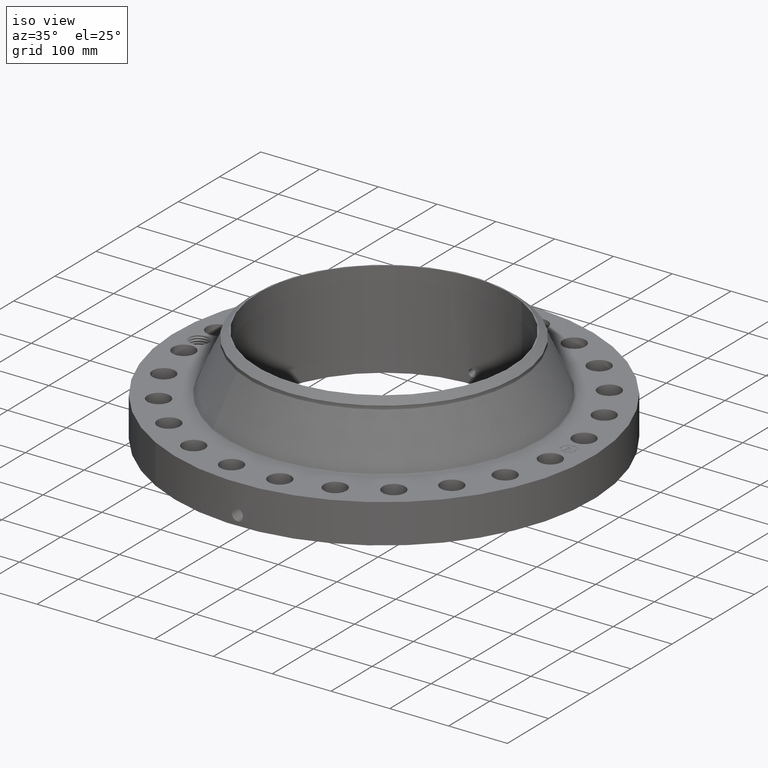
[diagram: clean part render]
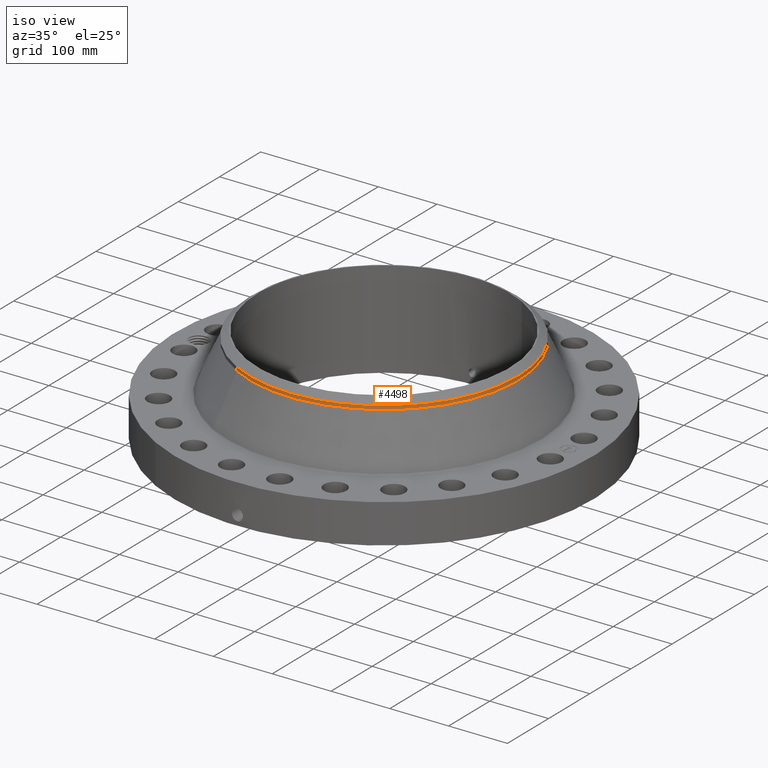
[diagram: same view with one face highlighted and labeled with its STEP entity id]
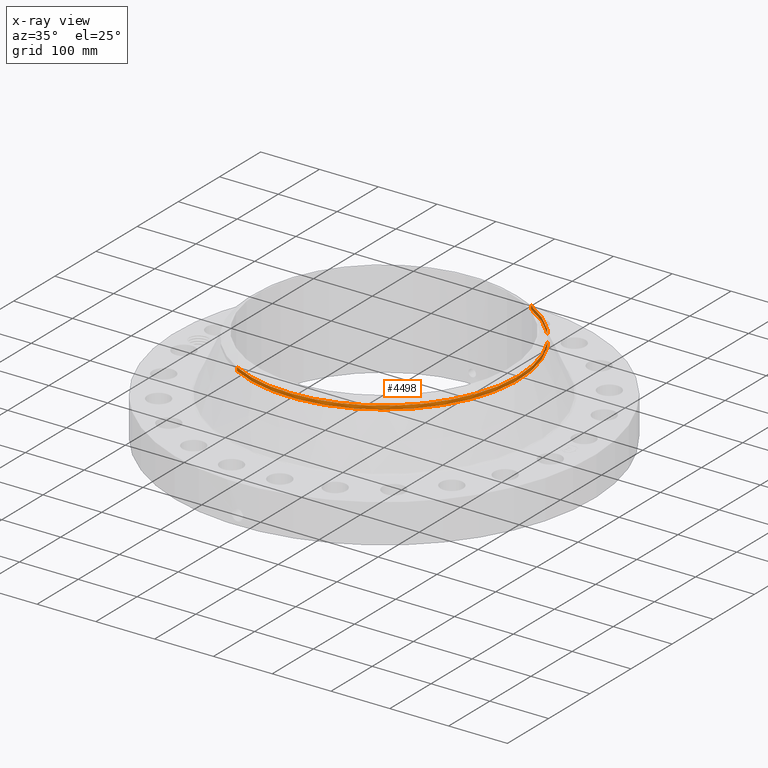
[diagram: x-ray of the same camera — body ghosted, the highlighted face saturated]
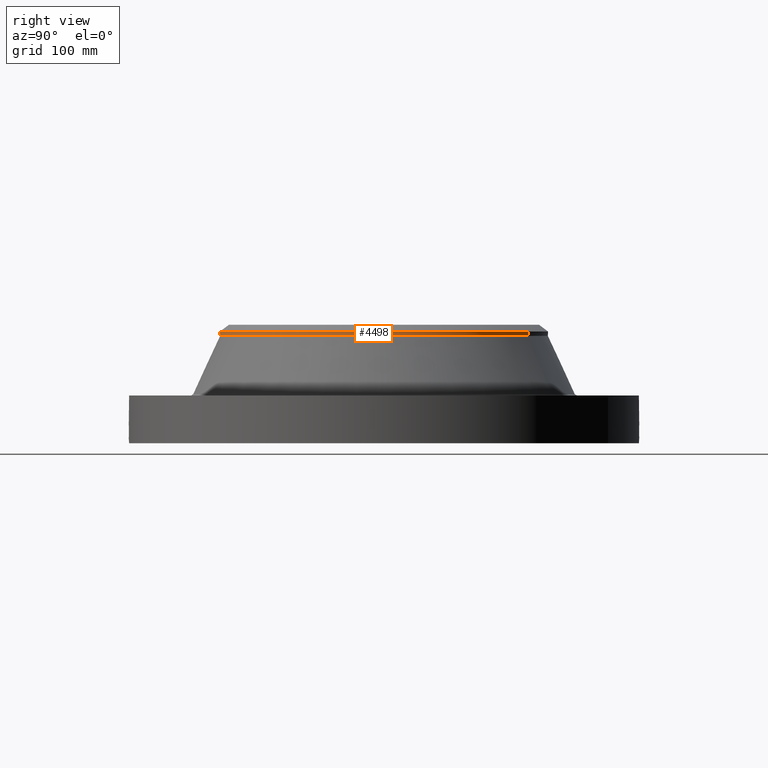
[diagram: same view with one face highlighted and labeled with its STEP entity id]
A machine part, iso view. The second image highlights one B-rep face of the part: STEP entity #4498.
The next image is the same camera in x-ray: the body ghosted, the highlighted face saturated — about 0% of this face is hidden behind the body in this view.
A second angle (right view) of the same face is appended — the face is thin or edge-on in the first view.
In plain terms, the highlighted cylindrical surface (partial cylindrical patch) has radius 228.6 mm, axis along (0, 0, -1).
Its self-contained STEP definition (entity closure, byte-faithful):
#3661=AXIS2_PLACEMENT_3D('Circle Axis2P3D',#3659,#3660,$) ;
#4128=AXIS2_PLACEMENT_3D('Circle Axis2P3D',#4126,#4127,$) ;
#4141=AXIS2_PLACEMENT_3D('Circle Axis2P3D',#4139,#4140,$) ;
#4479=AXIS2_PLACEMENT_3D('Cylinder Axis2P3D',#4476,#4477,#4478) ;
#3656=CARTESIAN_POINT('Vertex',(4.31482984746,7.89824305704,6.14296120821)) ;
#3659=CARTESIAN_POINT('Axis2P3D Location',(0.,0.,6.14296120821)) ;
#3663=CARTESIAN_POINT('Vertex',(-4.31482984746,-7.89824305704,6.14296120821)) ;
#4109=CARTESIAN_POINT('Vertex',(4.31482984746,-7.89824305704,6.37918168065)) ;
#4123=CARTESIAN_POINT('Vertex',(-4.31482984746,-7.89824305704,6.37918168065)) ;
#4126=CARTESIAN_POINT('Axis2P3D Location',(0.,0.,6.37918168065)) ;
#4139=CARTESIAN_POINT('Axis2P3D Location',(0.,0.,6.37918168065)) ;
#4143=CARTESIAN_POINT('Vertex',(4.31482984746,7.89824305704,6.37918168065)) ;
#4476=CARTESIAN_POINT('Axis2P3D Location',(0.,0.,3.50000000001)) ;
#4481=CARTESIAN_POINT('Line Origine',(-4.31482984746,-7.89824305704,6.26107144443)) ;
#4486=CARTESIAN_POINT('Line Origine',(4.31482984746,7.89824305704,6.26107144443)) ;
#3660=DIRECTION('Axis2P3D Direction',(0.,0.,-0.0393700787402)) ;
#4127=DIRECTION('Axis2P3D Direction',(0.,0.,-0.0393700787402)) ;
#4140=DIRECTION('Axis2P3D Direction',(0.,0.,-0.0393700787402)) ;
#4477=DIRECTION('Axis2P3D Direction',(0.,0.,-0.0393700787402)) ;
#4478=DIRECTION('Axis2P3D XDirection',(-0.0188750212049,-0.0345504945626,0.)) ;
#4482=DIRECTION('Vector Direction',(0.,0.,-0.0393700787402)) ;
#4487=DIRECTION('Vector Direction',(0.,0.,-0.0393700787402)) ;
#4483=VECTOR('Line Direction',#4482,0.0393700787402) ;
#4488=VECTOR('Line Direction',#4487,0.0393700787402) ;
#4492=ORIENTED_EDGE('',*,*,#4485,.F.) ;
#4493=ORIENTED_EDGE('',*,*,#3665,.F.) ;
#4494=ORIENTED_EDGE('',*,*,#4490,.T.) ;
#4495=ORIENTED_EDGE('',*,*,#4145,.F.) ;
#4496=ORIENTED_EDGE('',*,*,#4130,.T.) ;
#4498=ADVANCED_FACE('PartBody',(#4497),#4480,.T.) ;
#3662=CIRCLE('generated circle',#3661,9.00000000004) ;
#4129=CIRCLE('generated circle',#4128,9.00000000004) ;
#4142=CIRCLE('generated circle',#4141,9.00000000004) ;
#4480=CYLINDRICAL_SURFACE('generated cylinder',#4479,9.00000000004) ;
#3665=EDGE_CURVE('',#3657,#3664,#3662,.T.) ;
#4130=EDGE_CURVE('',#4110,#4124,#4129,.T.) ;
#4145=EDGE_CURVE('',#4110,#4144,#4142,.F.) ;
#4485=EDGE_CURVE('',#3664,#4124,#4484,.F.) ;
#4490=EDGE_CURVE('',#3657,#4144,#4489,.F.) ;
#4491=EDGE_LOOP('',(#4492,#4493,#4494,#4495,#4496)) ;
#4497=FACE_OUTER_BOUND('',#4491,.T.) ;
#4484=LINE('Line',#4481,#4483) ;
#4489=LINE('Line',#4486,#4488) ;
#3657=VERTEX_POINT('',#3656) ;
#3664=VERTEX_POINT('',#3663) ;
#4110=VERTEX_POINT('',#4109) ;
#4124=VERTEX_POINT('',#4123) ;
#4144=VERTEX_POINT('',#4143) ;